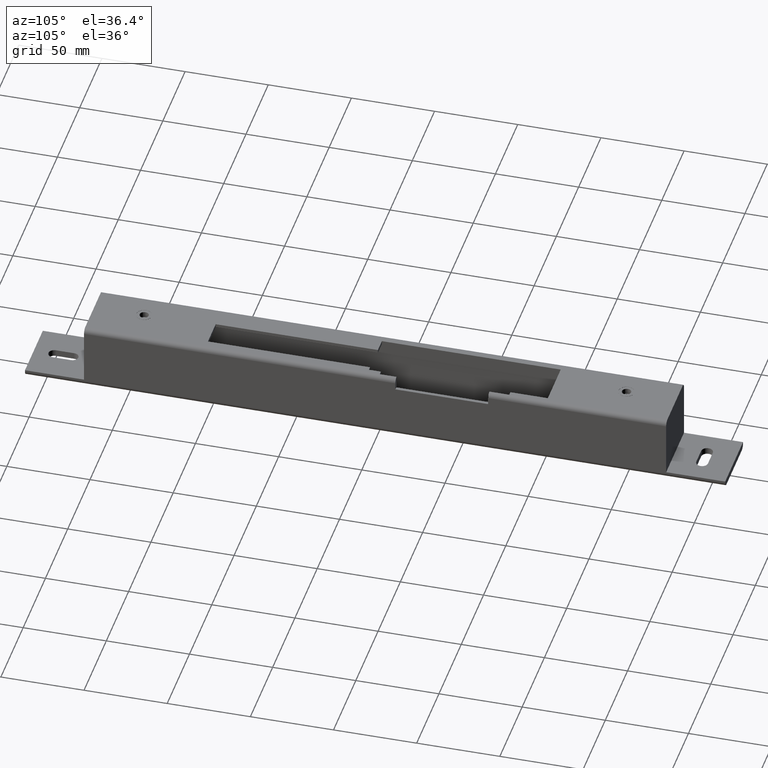
[diagram: clean part render]
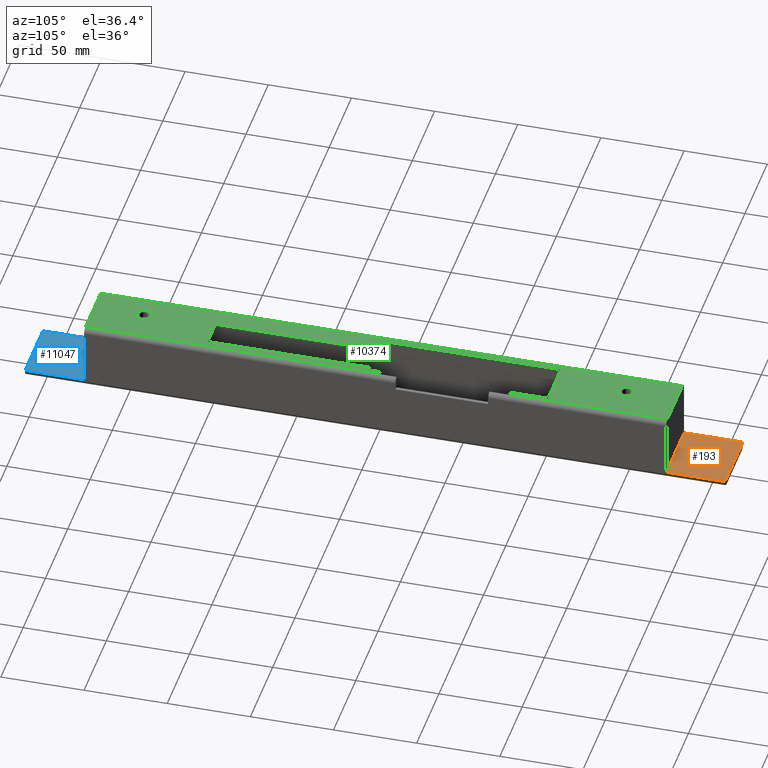
[diagram: same view with three faces highlighted in distinct colors, each labeled with its STEP entity id]
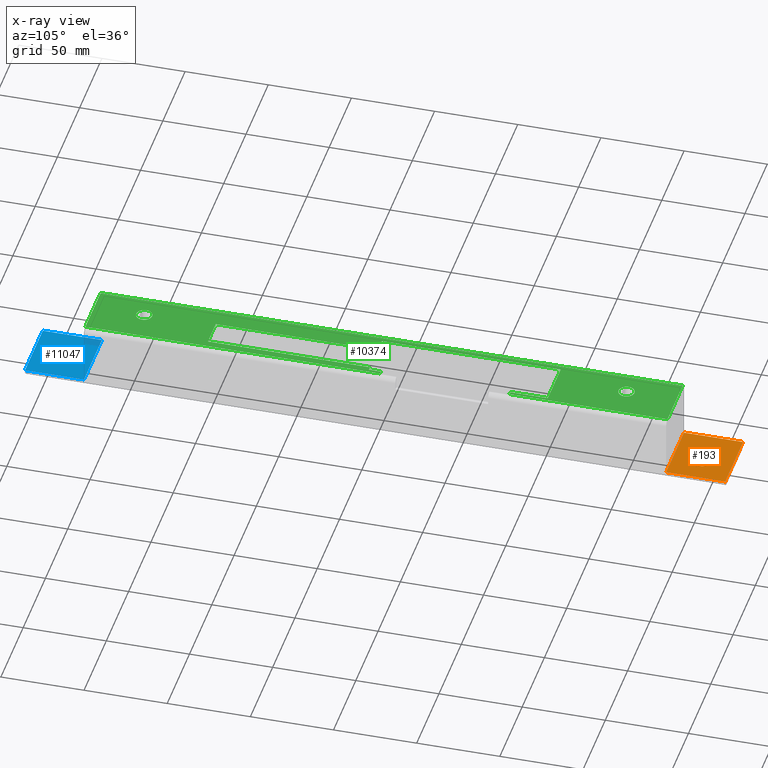
[diagram: x-ray of the same camera — body ghosted, the three highlighted faces saturated]
A machine part, auxiliary view with three faces highlighted in distinct colors.
The next image is the same camera in x-ray (body ghosted, the three faces saturated) — at least one of them is partly hidden behind the body in this view.
Their STEP definitions:

[orange] entity #193 — the highlighted planar face has unit normal (0, 0, -1).
#74 = DIRECTION ( 'NONE',  ( -0.000000000000000000, -1.000000000000000000, -0.000000000000000000 ) ) ;
#193 = ADVANCED_FACE ( 'NONE', ( #7524, #4546 ), #12386, .F. ) ;
#578 = EDGE_LOOP ( 'NONE', ( #8715, #13051, #2064, #4683, #1236 ) ) ;
#775 = ORIENTED_EDGE ( 'NONE', *, *, #11043, .T. ) ;
#1050 = VECTOR ( 'NONE', #13373, 1000.000000000000000 ) ;
#1236 = ORIENTED_EDGE ( 'NONE', *, *, #11373, .F. ) ;
#1330 = VERTEX_POINT ( 'NONE', #12798 ) ;
#1508 = VERTEX_POINT ( 'NONE', #3228 ) ;
#1645 = CARTESIAN_POINT ( 'NONE',  ( -5.499999999999996447, 196.2499999999999716, -15.99999999999999289 ) ) ;
#1701 = VERTEX_POINT ( 'NONE', #2481 ) ;
#1922 = CARTESIAN_POINT ( 'NONE',  ( 5.499999999999996447, 196.2499999999999716, -15.99999999999999289 ) ) ;
#1963 = VECTOR ( 'NONE', #6158, 1000.000000000000000 ) ;
#2064 = ORIENTED_EDGE ( 'NONE', *, *, #11203, .F. ) ;
#2077 = EDGE_CURVE ( 'NONE', #3321, #12374, #3096, .T. ) ;
#2275 = LINE ( 'NONE', #10034, #1050 ) ;
#2313 = CARTESIAN_POINT ( 'NONE',  ( 20.00000000000000355, 210.5000000000000000, -15.99999999999999289 ) ) ;
#2481 = CARTESIAN_POINT ( 'NONE',  ( -5.499999999999996447, 189.2499999999999716, -15.99999999999999289 ) ) ;
#2795 = EDGE_CURVE ( 'NONE', #3321, #8911, #11182, .T. ) ;
#3096 = LINE ( 'NONE', #4588, #12157 ) ;
#3228 = CARTESIAN_POINT ( 'NONE',  ( 5.499999999999995559, 189.2499999999999716, -15.99999999999999289 ) ) ;
#3321 = VERTEX_POINT ( 'NONE', #6650 ) ;
#3335 = CARTESIAN_POINT ( 'NONE',  ( 5.499999999999996447, 192.7499999999999716, -15.99999999999999289 ) ) ;
#3471 = CARTESIAN_POINT ( 'NONE',  ( -20.00000000000000355, 210.5000000000000000, -15.99999999999999289 ) ) ;
#3747 = AXIS2_PLACEMENT_3D ( 'NONE', #3335, #11132, #5605 ) ;
#4001 = DIRECTION ( 'NONE',  ( 0.000000000000000000, 0.000000000000000000, 1.000000000000000000 ) ) ;
#4343 = AXIS2_PLACEMENT_3D ( 'NONE', #7384, #4001, #5136 ) ;
#4546 = FACE_OUTER_BOUND ( 'NONE', #9816, .T. ) ;
#4578 = CIRCLE ( 'NONE', #3747, 3.500000000000003109 ) ;
#4588 = CARTESIAN_POINT ( 'NONE',  ( -20.00000000000000355, 210.5000000000000000, -15.99999999999999289 ) ) ;
#4595 = AXIS2_PLACEMENT_3D ( 'NONE', #3471, #5799, #8021 ) ;
#4654 = VERTEX_POINT ( 'NONE', #1645 ) ;
#4661 = EDGE_CURVE ( 'NONE', #11502, #9814, #14130, .T. ) ;
#4683 = ORIENTED_EDGE ( 'NONE', *, *, #4661, .F. ) ;
#4833 = CIRCLE ( 'NONE', #13394, 3.500000000000003109 ) ;
#4854 = DIRECTION ( 'NONE',  ( 1.000000000000000000, 0.000000000000000000, 0.000000000000000000 ) ) ;
#4862 = EDGE_CURVE ( 'NONE', #8911, #1330, #8891, .T. ) ;
#5125 = CARTESIAN_POINT ( 'NONE',  ( -5.499999999999996447, 196.2499999999999716, -15.99999999999999289 ) ) ;
#5136 = DIRECTION ( 'NONE',  ( 1.000000000000000000, 0.000000000000000000, 0.000000000000000000 ) ) ;
#5605 = DIRECTION ( 'NONE',  ( 1.000000000000000000, 0.000000000000000000, 0.000000000000000000 ) ) ;
#5799 = DIRECTION ( 'NONE',  ( 0.000000000000000000, 0.000000000000000000, -1.000000000000000000 ) ) ;
#6136 = CARTESIAN_POINT ( 'NONE',  ( 9.000000000000000000, 192.7499999999999716, -15.99999999999999289 ) ) ;
#6158 = DIRECTION ( 'NONE',  ( 1.000000000000000000, 0.000000000000000000, 0.000000000000000000 ) ) ;
#6650 = CARTESIAN_POINT ( 'NONE',  ( -20.00000000000000355, 210.5000000000000000, -15.99999999999999289 ) ) ;
#6960 = CARTESIAN_POINT ( 'NONE',  ( -5.499999999999996447, 192.7499999999999716, -15.99999999999999289 ) ) ;
#7032 = EDGE_CURVE ( 'NONE', #4654, #1701, #4833, .T. ) ;
#7384 = CARTESIAN_POINT ( 'NONE',  ( 5.499999999999996447, 192.7499999999999716, -15.99999999999999289 ) ) ;
#7524 = FACE_BOUND ( 'NONE', #578, .T. ) ;
#7848 = DIRECTION ( 'NONE',  ( -0.000000000000000000, -1.000000000000000000, -0.000000000000000000 ) ) ;
#7969 = DIRECTION ( 'NONE',  ( 1.000000000000000000, 0.000000000000000000, 0.000000000000000000 ) ) ;
#8021 = DIRECTION ( 'NONE',  ( -1.000000000000000000, 0.000000000000000000, -0.000000000000000000 ) ) ;
#8378 = VECTOR ( 'NONE', #7848, 1000.000000000000000 ) ;
#8715 = ORIENTED_EDGE ( 'NONE', *, *, #13143, .F. ) ;
#8891 = LINE ( 'NONE', #2313, #8378 ) ;
#8911 = VERTEX_POINT ( 'NONE', #12769 ) ;
#8933 = VECTOR ( 'NONE', #7969, 1000.000000000000000 ) ;
#9814 = VERTEX_POINT ( 'NONE', #1922 ) ;
#9816 = EDGE_LOOP ( 'NONE', ( #775, #11866, #14460, #10995 ) ) ;
#10034 = CARTESIAN_POINT ( 'NONE',  ( -5.499999999999996447, 189.2499999999999716, -15.99999999999999289 ) ) ;
#10266 = CARTESIAN_POINT ( 'NONE',  ( -20.00000000000000355, 175.0000000000000000, -15.99999999999999289 ) ) ;
#10517 = LINE ( 'NONE', #5125, #12238 ) ;
#10890 = CARTESIAN_POINT ( 'NONE',  ( -20.00000000000000355, 175.0000000000000000, -15.99999999999999289 ) ) ;
#10995 = ORIENTED_EDGE ( 'NONE', *, *, #2077, .T. ) ;
#11043 = EDGE_CURVE ( 'NONE', #12374, #1330, #13126, .T. ) ;
#11132 = DIRECTION ( 'NONE',  ( 0.000000000000000000, 0.000000000000000000, 1.000000000000000000 ) ) ;
#11182 = LINE ( 'NONE', #12324, #8933 ) ;
#11203 = EDGE_CURVE ( 'NONE', #9814, #4654, #10517, .T. ) ;
#11373 = EDGE_CURVE ( 'NONE', #1508, #11502, #4578, .T. ) ;
#11502 = VERTEX_POINT ( 'NONE', #6136 ) ;
#11866 = ORIENTED_EDGE ( 'NONE', *, *, #4862, .F. ) ;
#12157 = VECTOR ( 'NONE', #74, 1000.000000000000000 ) ;
#12238 = VECTOR ( 'NONE', #12994, 1000.000000000000000 ) ;
#12324 = CARTESIAN_POINT ( 'NONE',  ( -20.00000000000000355, 210.5000000000000000, -15.99999999999999289 ) ) ;
#12374 = VERTEX_POINT ( 'NONE', #10890 ) ;
#12386 = PLANE ( 'NONE',  #4595 ) ;
#12769 = CARTESIAN_POINT ( 'NONE',  ( 20.00000000000000355, 210.5000000000000000, -15.99999999999999289 ) ) ;
#12798 = CARTESIAN_POINT ( 'NONE',  ( 20.00000000000000355, 175.0000000000000000, -15.99999999999999289 ) ) ;
#12994 = DIRECTION ( 'NONE',  ( -1.000000000000000000, -0.000000000000000000, -0.000000000000000000 ) ) ;
#13051 = ORIENTED_EDGE ( 'NONE', *, *, #7032, .F. ) ;
#13126 = LINE ( 'NONE', #10266, #1963 ) ;
#13143 = EDGE_CURVE ( 'NONE', #1701, #1508, #2275, .T. ) ;
#13373 = DIRECTION ( 'NONE',  ( 1.000000000000000000, 0.000000000000000000, 0.000000000000000000 ) ) ;
#13394 = AXIS2_PLACEMENT_3D ( 'NONE', #6960, #13711, #4854 ) ;
#13711 = DIRECTION ( 'NONE',  ( 0.000000000000000000, 0.000000000000000000, 1.000000000000000000 ) ) ;
#14130 = CIRCLE ( 'NONE', #4343, 3.500000000000003109 ) ;
#14460 = ORIENTED_EDGE ( 'NONE', *, *, #2795, .F. ) ;

[blue] entity #11047 — the highlighted planar face has unit normal (-0, 0, 1).
#353 = CARTESIAN_POINT ( 'NONE',  ( -3.500000000000004441, -187.2499999999999716, -15.99999999999999289 ) ) ;
#387 = CARTESIAN_POINT ( 'NONE',  ( 3.499999999999997780, -187.2499999999999716, -15.99999999999999289 ) ) ;
#442 = DIRECTION ( 'NONE',  ( -0.000000000000000000, 1.000000000000000000, -0.000000000000000000 ) ) ;
#482 = LINE ( 'NONE', #12599, #651 ) ;
#651 = VECTOR ( 'NONE', #442, 1000.000000000000000 ) ;
#1274 = PLANE ( 'NONE',  #9264 ) ;
#1294 = VERTEX_POINT ( 'NONE', #10667 ) ;
#1321 = AXIS2_PLACEMENT_3D ( 'NONE', #10167, #2484, #13505 ) ;
#1418 = AXIS2_PLACEMENT_3D ( 'NONE', #10912, #6454, #14050 ) ;
#1681 = DIRECTION ( 'NONE',  ( -0.000000000000000000, 0.000000000000000000, 1.000000000000000000 ) ) ;
#1927 = EDGE_LOOP ( 'NONE', ( #5281, #6081, #10628, #7496 ) ) ;
#2007 = CARTESIAN_POINT ( 'NONE',  ( -3.500000000000002220, -187.2499999999999716, -15.99999999999999289 ) ) ;
#2218 = LINE ( 'NONE', #13687, #10246 ) ;
#2361 = ORIENTED_EDGE ( 'NONE', *, *, #7485, .F. ) ;
#2451 = LINE ( 'NONE', #13455, #3336 ) ;
#2484 = DIRECTION ( 'NONE',  ( 0.000000000000000000, 0.000000000000000000, 1.000000000000000000 ) ) ;
#2694 = CARTESIAN_POINT ( 'NONE',  ( 20.00000000000000355, -210.5000000000000000, -15.99999999999999289 ) ) ;
#2781 = EDGE_CURVE ( 'NONE', #8220, #1294, #2451, .T. ) ;
#2924 = EDGE_LOOP ( 'NONE', ( #10488, #2361, #12951, #12850 ) ) ;
#3131 = CIRCLE ( 'NONE', #1321, 3.499999999999997780 ) ;
#3171 = EDGE_CURVE ( 'NONE', #8598, #11994, #7021, .T. ) ;
#3181 = DIRECTION ( 'NONE',  ( 1.971276677246370040E-16, -1.000000000000000000, 0.000000000000000000 ) ) ;
#3294 = CARTESIAN_POINT ( 'NONE',  ( -20.00000000000000355, -210.5000000000000000, -15.99999999999999289 ) ) ;
#3336 = VECTOR ( 'NONE', #6792, 1000.000000000000000 ) ;
#3837 = EDGE_CURVE ( 'NONE', #13645, #8932, #3131, .T. ) ;
#5281 = ORIENTED_EDGE ( 'NONE', *, *, #6486, .F. ) ;
#5722 = EDGE_CURVE ( 'NONE', #11899, #8859, #482, .T. ) ;
#6031 = CARTESIAN_POINT ( 'NONE',  ( 3.499999999999996891, -198.2499999999999716, -15.99999999999999289 ) ) ;
#6051 = VECTOR ( 'NONE', #3181, 1000.000000000000000 ) ;
#6081 = ORIENTED_EDGE ( 'NONE', *, *, #5722, .F. ) ;
#6454 = DIRECTION ( 'NONE',  ( 0.000000000000000000, 0.000000000000000000, 1.000000000000000000 ) ) ;
#6486 = EDGE_CURVE ( 'NONE', #8859, #1294, #2218, .T. ) ;
#6592 = VECTOR ( 'NONE', #6793, 1000.000000000000000 ) ;
#6768 = CARTESIAN_POINT ( 'NONE',  ( -20.00000000000000355, -210.5000000000000000, -15.99999999999999289 ) ) ;
#6792 = DIRECTION ( 'NONE',  ( -0.000000000000000000, 1.000000000000000000, -0.000000000000000000 ) ) ;
#6793 = DIRECTION ( 'NONE',  ( 7.885106708985480406E-17, 1.000000000000000000, -0.000000000000000000 ) ) ;
#6817 = DIRECTION ( 'NONE',  ( 1.000000000000000000, 0.000000000000000000, 0.000000000000000000 ) ) ;
#6963 = CARTESIAN_POINT ( 'NONE',  ( -20.00000000000000355, -210.5000000000000000, -15.99999999999999289 ) ) ;
#7021 = CIRCLE ( 'NONE', #1418, 3.500000000000000444 ) ;
#7051 = FACE_OUTER_BOUND ( 'NONE', #1927, .T. ) ;
#7485 = EDGE_CURVE ( 'NONE', #8932, #8598, #13357, .T. ) ;
#7496 = ORIENTED_EDGE ( 'NONE', *, *, #2781, .T. ) ;
#8220 = VERTEX_POINT ( 'NONE', #2694 ) ;
#8442 = EDGE_CURVE ( 'NONE', #11994, #13645, #10742, .T. ) ;
#8598 = VERTEX_POINT ( 'NONE', #387 ) ;
#8800 = CARTESIAN_POINT ( 'NONE',  ( -3.500000000000001332, -198.2499999999999716, -15.99999999999999289 ) ) ;
#8859 = VERTEX_POINT ( 'NONE', #11299 ) ;
#8932 = VERTEX_POINT ( 'NONE', #6031 ) ;
#9264 = AXIS2_PLACEMENT_3D ( 'NONE', #6963, #1681, #9463 ) ;
#9463 = DIRECTION ( 'NONE',  ( 1.000000000000000000, 0.000000000000000000, 0.000000000000000000 ) ) ;
#9988 = LINE ( 'NONE', #3294, #12768 ) ;
#10167 = CARTESIAN_POINT ( 'NONE',  ( -2.818925648462311528E-15, -198.2499999999999716, -15.99999999999999289 ) ) ;
#10246 = VECTOR ( 'NONE', #11290, 1000.000000000000000 ) ;
#10488 = ORIENTED_EDGE ( 'NONE', *, *, #3171, .F. ) ;
#10628 = ORIENTED_EDGE ( 'NONE', *, *, #11860, .T. ) ;
#10667 = CARTESIAN_POINT ( 'NONE',  ( 19.99999999999999645, -175.0000000000000000, -15.99999999999999289 ) ) ;
#10742 = LINE ( 'NONE', #2007, #6051 ) ;
#10912 = CARTESIAN_POINT ( 'NONE',  ( -2.385244779468109755E-15, -187.2499999999999716, -15.99999999999999289 ) ) ;
#11047 = ADVANCED_FACE ( 'NONE', ( #13471, #7051 ), #1274, .T. ) ;
#11290 = DIRECTION ( 'NONE',  ( 1.000000000000000000, 0.000000000000000000, 0.000000000000000000 ) ) ;
#11299 = CARTESIAN_POINT ( 'NONE',  ( -20.00000000000000355, -175.0000000000000000, -15.99999999999999289 ) ) ;
#11860 = EDGE_CURVE ( 'NONE', #11899, #8220, #9988, .T. ) ;
#11899 = VERTEX_POINT ( 'NONE', #6768 ) ;
#11994 = VERTEX_POINT ( 'NONE', #353 ) ;
#12599 = CARTESIAN_POINT ( 'NONE',  ( -20.00000000000000355, -210.5000000000000000, -15.99999999999999289 ) ) ;
#12768 = VECTOR ( 'NONE', #6817, 1000.000000000000000 ) ;
#12850 = ORIENTED_EDGE ( 'NONE', *, *, #8442, .F. ) ;
#12951 = ORIENTED_EDGE ( 'NONE', *, *, #3837, .F. ) ;
#13357 = LINE ( 'NONE', #13456, #6592 ) ;
#13455 = CARTESIAN_POINT ( 'NONE',  ( 20.00000000000000355, -210.5000000000000000, -15.99999999999999289 ) ) ;
#13456 = CARTESIAN_POINT ( 'NONE',  ( 3.499999999999997780, -187.2499999999999716, -15.99999999999999289 ) ) ;
#13471 = FACE_BOUND ( 'NONE', #2924, .T. ) ;
#13505 = DIRECTION ( 'NONE',  ( 1.000000000000000000, 0.000000000000000000, 0.000000000000000000 ) ) ;
#13645 = VERTEX_POINT ( 'NONE', #8800 ) ;
#13687 = CARTESIAN_POINT ( 'NONE',  ( -20.00000000000000355, -175.0000000000000000, -15.99999999999999289 ) ) ;
#14050 = DIRECTION ( 'NONE',  ( 1.000000000000000000, 0.000000000000000000, 0.000000000000000000 ) ) ;

[green] entity #10374 — the highlighted planar face has unit normal (0, 0, -1).
#22 = DIRECTION ( 'NONE',  ( 1.000000000000000000, 0.000000000000000000, 0.000000000000000000 ) ) ;
#98 = LINE ( 'NONE', #658, #11958 ) ;
#154 = VERTEX_POINT ( 'NONE', #4088 ) ;
#177 = ORIENTED_EDGE ( 'NONE', *, *, #7501, .F. ) ;
#226 = CARTESIAN_POINT ( 'NONE',  ( 12.49999999999998934, -102.5000000000000000, 20.00000000000000711 ) ) ;
#288 = VECTOR ( 'NONE', #10250, 1000.000000000000000 ) ;
#347 = CARTESIAN_POINT ( 'NONE',  ( 12.49999999999998934, -5.000000000000004441, 20.00000000000000711 ) ) ;
#444 = DIRECTION ( 'NONE',  ( 1.000000000000000000, 0.000000000000000000, 0.000000000000000000 ) ) ;
#459 = DIRECTION ( 'NONE',  ( 1.000000000000000000, -5.204170427930424241E-16, -0.000000000000000000 ) ) ;
#478 = CARTESIAN_POINT ( 'NONE',  ( -20.00000000000000000, 175.0000000000000000, 20.00000000000000711 ) ) ;
#479 = DIRECTION ( 'NONE',  ( 0.000000000000000000, 0.000000000000000000, 1.000000000000000000 ) ) ;
#658 = CARTESIAN_POINT ( 'NONE',  ( 15.00000000000000178, 102.5000000000000000, 20.00000000000000711 ) ) ;
#889 = VECTOR ( 'NONE', #459, 1000.000000000000000 ) ;
#941 = CARTESIAN_POINT ( 'NONE',  ( -5.000000000000013323, -102.5000000000000000, 20.00000000000000711 ) ) ;
#969 = ORIENTED_EDGE ( 'NONE', *, *, #8623, .F. ) ;
#1095 = CARTESIAN_POINT ( 'NONE',  ( -20.00000000000000000, -175.0000000000000000, 20.00000000000000711 ) ) ;
#1241 = AXIS2_PLACEMENT_3D ( 'NONE', #3608, #479, #9489 ) ;
#1564 = ORIENTED_EDGE ( 'NONE', *, *, #7656, .F. ) ;
#1568 = DIRECTION ( 'NONE',  ( 0.000000000000000000, -1.000000000000000000, 0.000000000000000000 ) ) ;
#1605 = EDGE_CURVE ( 'NONE', #154, #5733, #14278, .T. ) ;
#1679 = CARTESIAN_POINT ( 'NONE',  ( 15.00000000000000178, 79.99999999999998579, 20.00000000000000711 ) ) ;
#1716 = CARTESIAN_POINT ( 'NONE',  ( -14.00000000000000000, 102.5000000000000000, 20.00000000000000711 ) ) ;
#1763 = VECTOR ( 'NONE', #1568, 1000.000000000000000 ) ;
#1952 = VECTOR ( 'NONE', #12523, 1000.000000000000000 ) ;
#2159 = LINE ( 'NONE', #1679, #12446 ) ;
#2178 = DIRECTION ( 'NONE',  ( 1.000000000000000000, 0.000000000000000000, 0.000000000000000000 ) ) ;
#2379 = CARTESIAN_POINT ( 'NONE',  ( 15.00000000000000000, -5.000000000000007994, 20.00000000000000711 ) ) ;
#2654 = ORIENTED_EDGE ( 'NONE', *, *, #7122, .F. ) ;
#2697 = VECTOR ( 'NONE', #11704, 1000.000000000000000 ) ;
#2837 = ORIENTED_EDGE ( 'NONE', *, *, #6735, .F. ) ;
#2900 = DIRECTION ( 'NONE',  ( -0.000000000000000000, 1.000000000000000000, -0.000000000000000000 ) ) ;
#2916 = CIRCLE ( 'NONE', #12546, 4.774999999999980815 ) ;
#2919 = VERTEX_POINT ( 'NONE', #6989 ) ;
#2971 = ORIENTED_EDGE ( 'NONE', *, *, #3617, .F. ) ;
#3003 = VERTEX_POINT ( 'NONE', #9485 ) ;
#3138 = VERTEX_POINT ( 'NONE', #8464 ) ;
#3148 = ORIENTED_EDGE ( 'NONE', *, *, #13371, .T. ) ;
#3288 = EDGE_CURVE ( 'NONE', #3003, #3502, #3865, .T. ) ;
#3478 = ORIENTED_EDGE ( 'NONE', *, *, #6819, .F. ) ;
#3502 = VERTEX_POINT ( 'NONE', #3700 ) ;
#3524 = ORIENTED_EDGE ( 'NONE', *, *, #3288, .F. ) ;
#3608 = CARTESIAN_POINT ( 'NONE',  ( -2.999999999999999112, -145.0000000000000000, 20.00000000000000711 ) ) ;
#3617 = EDGE_CURVE ( 'NONE', #3502, #13019, #6499, .T. ) ;
#3666 = DIRECTION ( 'NONE',  ( 1.000000000000000000, -0.000000000000000000, -0.000000000000000000 ) ) ;
#3700 = CARTESIAN_POINT ( 'NONE',  ( -4.999999999999999112, -5.000000000000004441, 20.00000000000000711 ) ) ;
#3731 = CARTESIAN_POINT ( 'NONE',  ( 17.00000000000000355, 175.0000000000000000, 20.00000000000000711 ) ) ;
#3765 = CARTESIAN_POINT ( 'NONE',  ( -14.00000000000001421, -5.000000000000004441, 20.00000000000000711 ) ) ;
#3829 = DIRECTION ( 'NONE',  ( 0.000000000000000000, 0.000000000000000000, 1.000000000000000000 ) ) ;
#3865 = LINE ( 'NONE', #14345, #8046 ) ;
#3990 = VERTEX_POINT ( 'NONE', #4796 ) ;
#4027 = ORIENTED_EDGE ( 'NONE', *, *, #5362, .F. ) ;
#4088 = CARTESIAN_POINT ( 'NONE',  ( 12.49999999999998934, -102.5000000000000000, 20.00000000000000711 ) ) ;
#4136 = VECTOR ( 'NONE', #3666, 1000.000000000000000 ) ;
#4282 = DIRECTION ( 'NONE',  ( -1.000000000000000000, -0.000000000000000000, -0.000000000000000000 ) ) ;
#4305 = CARTESIAN_POINT ( 'NONE',  ( 17.00000000000000355, 175.0000000000000000, 20.00000000000000711 ) ) ;
#4307 = VECTOR ( 'NONE', #9138, 1000.000000000000000 ) ;
#4398 = DIRECTION ( 'NONE',  ( 1.000000000000000000, -0.000000000000000000, -0.000000000000000000 ) ) ;
#4754 = CARTESIAN_POINT ( 'NONE',  ( -2.999999999999999112, -145.0000000000000000, 20.00000000000000711 ) ) ;
#4796 = CARTESIAN_POINT ( 'NONE',  ( -17.00000000000000000, 175.0000000000000000, 20.00000000000000711 ) ) ;
#4822 = LINE ( 'NONE', #226, #4136 ) ;
#4846 = EDGE_CURVE ( 'NONE', #7708, #14412, #11844, .T. ) ;
#4856 = AXIS2_PLACEMENT_3D ( 'NONE', #7815, #12119, #7774 ) ;
#4963 = FACE_BOUND ( 'NONE', #5265, .T. ) ;
#5032 = VERTEX_POINT ( 'NONE', #6096 ) ;
#5265 = EDGE_LOOP ( 'NONE', ( #8613, #2654 ) ) ;
#5362 = EDGE_CURVE ( 'NONE', #5032, #11228, #10632, .T. ) ;
#5678 = FACE_OUTER_BOUND ( 'NONE', #9397, .T. ) ;
#5695 = ORIENTED_EDGE ( 'NONE', *, *, #12516, .F. ) ;
#5733 = VERTEX_POINT ( 'NONE', #347 ) ;
#5814 = EDGE_CURVE ( 'NONE', #11228, #5032, #2916, .T. ) ;
#5900 = VERTEX_POINT ( 'NONE', #3731 ) ;
#5901 = DIRECTION ( 'NONE',  ( 0.000000000000000000, 0.000000000000000000, 1.000000000000000000 ) ) ;
#5913 = VECTOR ( 'NONE', #4282, 1000.000000000000000 ) ;
#5930 = VERTEX_POINT ( 'NONE', #1716 ) ;
#6096 = CARTESIAN_POINT ( 'NONE',  ( 1.774999999999981481, -145.0000000000000000, 20.00000000000000711 ) ) ;
#6195 = FACE_BOUND ( 'NONE', #8581, .T. ) ;
#6247 = VERTEX_POINT ( 'NONE', #10735 ) ;
#6338 = LINE ( 'NONE', #11628, #889 ) ;
#6499 = LINE ( 'NONE', #8086, #12918 ) ;
#6657 = PLANE ( 'NONE',  #4856 ) ;
#6694 = VERTEX_POINT ( 'NONE', #12662 ) ;
#6710 = AXIS2_PLACEMENT_3D ( 'NONE', #10560, #3829, #444 ) ;
#6735 = EDGE_CURVE ( 'NONE', #2919, #3138, #98, .T. ) ;
#6819 = EDGE_CURVE ( 'NONE', #3138, #5930, #13369, .T. ) ;
#6900 = LINE ( 'NONE', #478, #8655 ) ;
#6989 = CARTESIAN_POINT ( 'NONE',  ( 15.00000000000000178, 79.99999999999998579, 20.00000000000000711 ) ) ;
#7012 = ORIENTED_EDGE ( 'NONE', *, *, #5814, .F. ) ;
#7122 = EDGE_CURVE ( 'NONE', #7672, #9287, #8515, .T. ) ;
#7501 = EDGE_CURVE ( 'NONE', #5733, #7683, #9710, .T. ) ;
#7656 = EDGE_CURVE ( 'NONE', #13019, #154, #4822, .T. ) ;
#7672 = VERTEX_POINT ( 'NONE', #12521 ) ;
#7683 = VERTEX_POINT ( 'NONE', #13799 ) ;
#7708 = VERTEX_POINT ( 'NONE', #14037 ) ;
#7774 = DIRECTION ( 'NONE',  ( -1.000000000000000000, 0.000000000000000000, -0.000000000000000000 ) ) ;
#7815 = CARTESIAN_POINT ( 'NONE',  ( -20.00000000000000000, 175.0000000000000000, 20.00000000000000711 ) ) ;
#7976 = CARTESIAN_POINT ( 'NONE',  ( 12.49999999999998934, -5.000000000000004441, 20.00000000000000711 ) ) ;
#7995 = DIRECTION ( 'NONE',  ( -0.000000000000000000, 1.000000000000000000, -0.000000000000000000 ) ) ;
#8046 = VECTOR ( 'NONE', #4398, 1000.000000000000000 ) ;
#8086 = CARTESIAN_POINT ( 'NONE',  ( -5.000000000000013323, -102.5000000000000000, 20.00000000000000711 ) ) ;
#8132 = CARTESIAN_POINT ( 'NONE',  ( 1.774999999999981481, 145.0000000000000000, 20.00000000000000711 ) ) ;
#8371 = ORIENTED_EDGE ( 'NONE', *, *, #1605, .F. ) ;
#8464 = CARTESIAN_POINT ( 'NONE',  ( 15.00000000000000178, 102.5000000000000000, 20.00000000000000711 ) ) ;
#8515 = CIRCLE ( 'NONE', #6710, 4.774999999999980815 ) ;
#8560 = VECTOR ( 'NONE', #22, 1000.000000000000000 ) ;
#8581 = EDGE_LOOP ( 'NONE', ( #4027, #7012 ) ) ;
#8613 = ORIENTED_EDGE ( 'NONE', *, *, #14216, .F. ) ;
#8623 = EDGE_CURVE ( 'NONE', #3990, #5900, #6900, .T. ) ;
#8655 = VECTOR ( 'NONE', #11561, 1000.000000000000000 ) ;
#8696 = EDGE_CURVE ( 'NONE', #6247, #5900, #13870, .T. ) ;
#8929 = LINE ( 'NONE', #10559, #1763 ) ;
#9075 = VECTOR ( 'NONE', #7995, 1000.000000000000000 ) ;
#9138 = DIRECTION ( 'NONE',  ( 1.000000000000000000, -1.387778780781439562E-15, -0.000000000000000000 ) ) ;
#9287 = VERTEX_POINT ( 'NONE', #8132 ) ;
#9397 = EDGE_LOOP ( 'NONE', ( #2837, #13265, #12581, #969, #3148, #13254, #14347, #12427, #12572, #177, #8371, #1564, #2971, #3524, #5695, #3478 ) ) ;
#9485 = CARTESIAN_POINT ( 'NONE',  ( -14.00000000000001421, -5.000000000000004441, 20.00000000000000711 ) ) ;
#9489 = DIRECTION ( 'NONE',  ( 1.000000000000000000, 0.000000000000000000, 0.000000000000000000 ) ) ;
#9506 = DIRECTION ( 'NONE',  ( -1.000000000000000000, -0.000000000000000000, -0.000000000000000000 ) ) ;
#9563 = AXIS2_PLACEMENT_3D ( 'NONE', #11061, #10958, #2178 ) ;
#9710 = LINE ( 'NONE', #2379, #4307 ) ;
#9719 = EDGE_CURVE ( 'NONE', #6247, #2919, #2159, .T. ) ;
#9821 = VECTOR ( 'NONE', #11736, 1000.000000000000000 ) ;
#9877 = CARTESIAN_POINT ( 'NONE',  ( -7.774999999999979927, -145.0000000000000000, 20.00000000000000711 ) ) ;
#10250 = DIRECTION ( 'NONE',  ( -0.000000000000000000, 1.000000000000000000, -0.000000000000000000 ) ) ;
#10274 = CARTESIAN_POINT ( 'NONE',  ( 17.00000000000000355, -175.0000000000000000, 20.00000000000000711 ) ) ;
#10374 = ADVANCED_FACE ( 'NONE', ( #6195, #4963, #5678 ), #6657, .F. ) ;
#10461 = DIRECTION ( 'NONE',  ( 1.000000000000000000, 0.000000000000000000, 0.000000000000000000 ) ) ;
#10559 = CARTESIAN_POINT ( 'NONE',  ( -17.00000000000000000, 175.0000000000000000, 20.00000000000000711 ) ) ;
#10560 = CARTESIAN_POINT ( 'NONE',  ( -2.999999999999999112, 145.0000000000000000, 20.00000000000000711 ) ) ;
#10632 = CIRCLE ( 'NONE', #1241, 4.774999999999980815 ) ;
#10637 = EDGE_CURVE ( 'NONE', #14412, #6694, #12779, .T. ) ;
#10735 = CARTESIAN_POINT ( 'NONE',  ( 17.00000000000000000, 79.99999999999998579, 20.00000000000000711 ) ) ;
#10958 = DIRECTION ( 'NONE',  ( 0.000000000000000000, 0.000000000000000000, 1.000000000000000000 ) ) ;
#11061 = CARTESIAN_POINT ( 'NONE',  ( -2.999999999999999112, 145.0000000000000000, 20.00000000000000711 ) ) ;
#11228 = VERTEX_POINT ( 'NONE', #9877 ) ;
#11325 = CIRCLE ( 'NONE', #9563, 4.774999999999980815 ) ;
#11561 = DIRECTION ( 'NONE',  ( 1.000000000000000000, 0.000000000000000000, 0.000000000000000000 ) ) ;
#11569 = VERTEX_POINT ( 'NONE', #14060 ) ;
#11616 = DIRECTION ( 'NONE',  ( -1.423362852083534146E-16, -1.000000000000000000, -0.000000000000000000 ) ) ;
#11628 = CARTESIAN_POINT ( 'NONE',  ( 17.49999999999999645, 2.199999999999994404, 20.00000000000000711 ) ) ;
#11644 = EDGE_CURVE ( 'NONE', #11569, #6694, #6338, .T. ) ;
#11704 = DIRECTION ( 'NONE',  ( -0.000000000000000000, 1.000000000000000000, -0.000000000000000000 ) ) ;
#11736 = DIRECTION ( 'NONE',  ( -0.000000000000000000, 1.000000000000000000, -0.000000000000000000 ) ) ;
#11844 = LINE ( 'NONE', #1095, #8560 ) ;
#11958 = VECTOR ( 'NONE', #2900, 1000.000000000000000 ) ;
#12119 = DIRECTION ( 'NONE',  ( 0.000000000000000000, 0.000000000000000000, -1.000000000000000000 ) ) ;
#12307 = CARTESIAN_POINT ( 'NONE',  ( 15.00000000000000000, 2.199999999999995737, 20.00000000000000711 ) ) ;
#12427 = ORIENTED_EDGE ( 'NONE', *, *, #11644, .F. ) ;
#12446 = VECTOR ( 'NONE', #9506, 1000.000000000000000 ) ;
#12516 = EDGE_CURVE ( 'NONE', #5930, #3003, #13818, .T. ) ;
#12521 = CARTESIAN_POINT ( 'NONE',  ( -7.774999999999979927, 145.0000000000000000, 20.00000000000000711 ) ) ;
#12523 = DIRECTION ( 'NONE',  ( -1.290957005378089075E-16, -1.000000000000000000, -0.000000000000000000 ) ) ;
#12546 = AXIS2_PLACEMENT_3D ( 'NONE', #4754, #5901, #10461 ) ;
#12572 = ORIENTED_EDGE ( 'NONE', *, *, #14285, .F. ) ;
#12581 = ORIENTED_EDGE ( 'NONE', *, *, #8696, .T. ) ;
#12662 = CARTESIAN_POINT ( 'NONE',  ( 17.00000000000000355, 2.200000000000007283, 20.00000000000000711 ) ) ;
#12779 = LINE ( 'NONE', #14137, #9821 ) ;
#12899 = LINE ( 'NONE', #12307, #9075 ) ;
#12918 = VECTOR ( 'NONE', #11616, 1000.000000000000000 ) ;
#13019 = VERTEX_POINT ( 'NONE', #941 ) ;
#13254 = ORIENTED_EDGE ( 'NONE', *, *, #4846, .T. ) ;
#13265 = ORIENTED_EDGE ( 'NONE', *, *, #9719, .F. ) ;
#13369 = LINE ( 'NONE', #14383, #5913 ) ;
#13371 = EDGE_CURVE ( 'NONE', #3990, #7708, #8929, .T. ) ;
#13799 = CARTESIAN_POINT ( 'NONE',  ( 15.00000000000000000, -5.000000000000007994, 20.00000000000000711 ) ) ;
#13818 = LINE ( 'NONE', #3765, #1952 ) ;
#13870 = LINE ( 'NONE', #4305, #2697 ) ;
#14037 = CARTESIAN_POINT ( 'NONE',  ( -17.00000000000000000, -175.0000000000000000, 20.00000000000000711 ) ) ;
#14060 = CARTESIAN_POINT ( 'NONE',  ( 15.00000000000000000, 2.199999999999995737, 20.00000000000000711 ) ) ;
#14137 = CARTESIAN_POINT ( 'NONE',  ( 17.00000000000000355, 175.0000000000000000, 20.00000000000000711 ) ) ;
#14216 = EDGE_CURVE ( 'NONE', #9287, #7672, #11325, .T. ) ;
#14278 = LINE ( 'NONE', #7976, #288 ) ;
#14285 = EDGE_CURVE ( 'NONE', #7683, #11569, #12899, .T. ) ;
#14345 = CARTESIAN_POINT ( 'NONE',  ( -4.999999999999999112, -5.000000000000004441, 20.00000000000000711 ) ) ;
#14347 = ORIENTED_EDGE ( 'NONE', *, *, #10637, .T. ) ;
#14383 = CARTESIAN_POINT ( 'NONE',  ( -14.00000000000000000, 102.5000000000000000, 20.00000000000000711 ) ) ;
#14412 = VERTEX_POINT ( 'NONE', #10274 ) ;